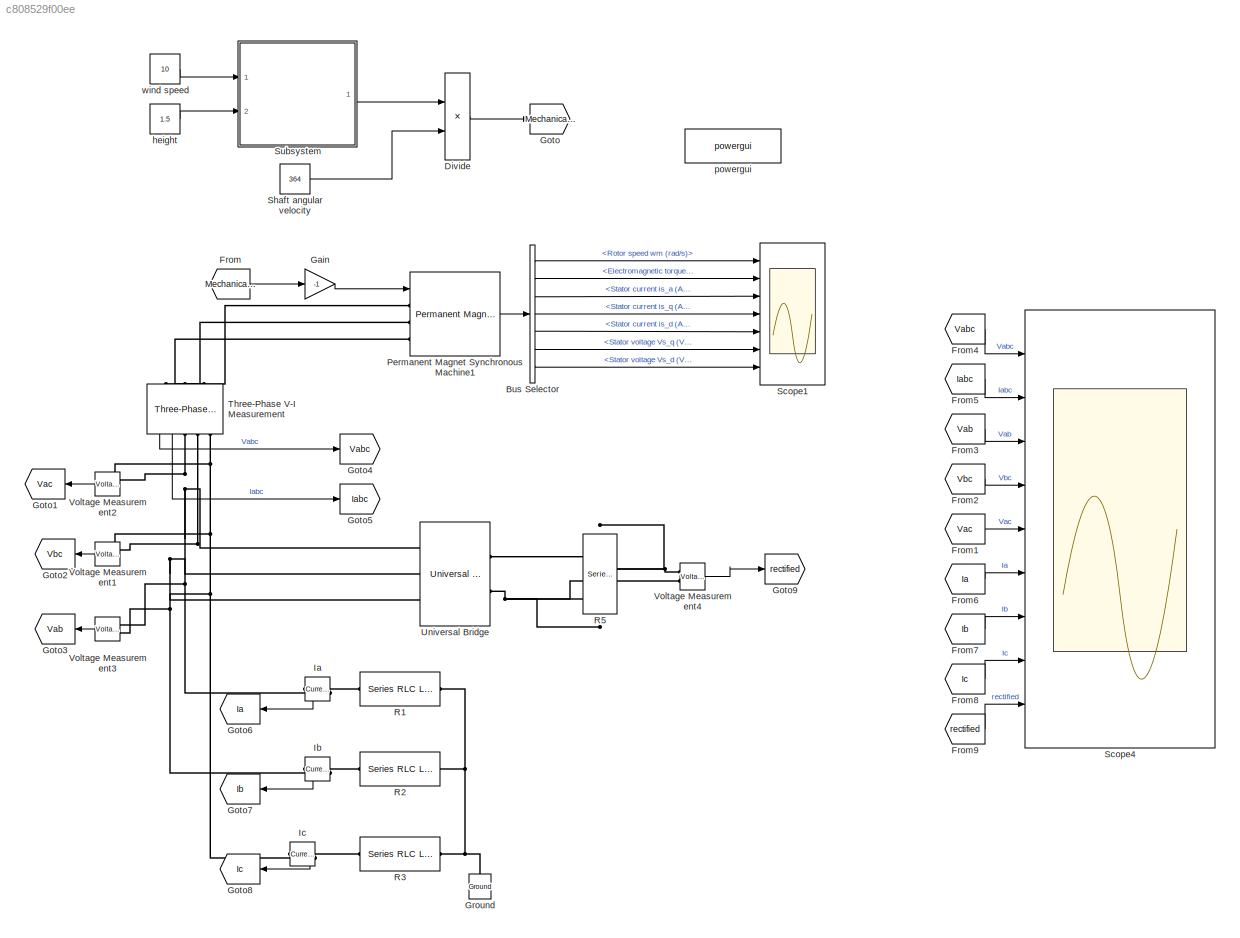
MODEL slx_c808529f00ee
KIND model
CONFIG AbsTol = auto
CONFIG EnableMultiTasking = off
CONFIG FixedStep = auto
CONFIG MaxStep = auto
CONFIG MinStep = auto
CONFIG RelTol = 1e-3
CONFIG SampleTimeConstraint = Unconstrained
CONFIG SolverName = VariableStepAuto
CONFIG StartTime = 0
CONFIG StopTime = 2
BLOCK [Constant]  wind speed 
  Value = 10
BLOCK [BusSelector] Bus Selector
  OutputSignals = Rotor speed wm (rad/s),Electromagnetic torque Te (N*m),Stator current is_a (A),Stator current is_q (A),Stator current is_d (A),Stator voltage Vs_q (V),Stator voltage Vs_d (V)
  Ports = [1, 7]
BLOCK [Product] Divide
  Inputs = */
  OutMax = [1000]
  OutMin = [1]
  Ports = [2, 1]
BLOCK [From] From
  GotoTag = Mechanical_Torque
BLOCK [From] From1
  GotoTag = Vac
  NameLocation = top
BLOCK [From] From2
  GotoTag = Vbc
  NameLocation = top
BLOCK [From] From3
  GotoTag = Vab
  NameLocation = top
BLOCK [From] From4
  GotoTag = Vabc
BLOCK [From] From5
  GotoTag = Iabc
BLOCK [From] From6
  GotoTag = Ia
  NameLocation = top
BLOCK [From] From7
  GotoTag = Ib
  NameLocation = top
BLOCK [From] From8
  GotoTag = Ic
  NameLocation = top
BLOCK [From] From9
  GotoTag = rectified
BLOCK [Gain] Gain
  Gain = -1
BLOCK [Goto] Goto
  GotoTag = Mechanical_Torque
BLOCK [Goto] Goto1
  GotoTag = Vac
  NameLocation = top
BLOCK [Goto] Goto2
  GotoTag = Vbc
  NameLocation = top
BLOCK [Goto] Goto3
  GotoTag = Vab
  NameLocation = top
BLOCK [Goto] Goto4
  GotoTag = Vabc
BLOCK [Goto] Goto5
  GotoTag = Iabc
BLOCK [Goto] Goto6
  GotoTag = Ia
  NameLocation = top
BLOCK [Goto] Goto7
  GotoTag = Ib
  NameLocation = top
BLOCK [Goto] Goto8
  GotoTag = Ic
  NameLocation = top
BLOCK [Goto] Goto9
  GotoTag = rectified
BLOCK [Reference] Ground  REF=spsGroundLib/Ground
  NameLocation = right
  Ports = [0, 0, 0, 0, 0, 1]
  SourceBlock = spsGroundLib/Ground
  SourceProductBaseCode = PS
  SourceType = Ground
BLOCK [Reference] Ia  REF=spsCurrentMeasurementLib/Current Measurement
  NameLocation = top
  Ports = [0, 1, 0, 0, 0, 1, 1]
  SourceBlock = spsCurrentMeasurementLib/Current Measurement
  SourceProductBaseCode = PS
  SourceType = Current Measurement
  UserDataPersistent = on
BLOCK [Reference] Ib  REF=spsCurrentMeasurementLib/Current Measurement
  NameLocation = top
  Ports = [0, 1, 0, 0, 0, 1, 1]
  SourceBlock = spsCurrentMeasurementLib/Current Measurement
  SourceProductBaseCode = PS
  SourceType = Current Measurement
  UserDataPersistent = on
BLOCK [Reference] Ic  REF=spsCurrentMeasurementLib/Current Measurement
  NameLocation = top
  Ports = [0, 1, 0, 0, 0, 1, 1]
  SourceBlock = spsCurrentMeasurementLib/Current Measurement
  SourceProductBaseCode = PS
  SourceType = Current Measurement
  UserDataPersistent = on
BLOCK [Reference] Permanent Magnet Synchronous Machine1  REF=spsPermanentMagnetSynchronousMachineLib/Permanent Magnet
Synchronous Machine
  Ports = [1, 1, 0, 0, 0, 3]
  SourceBlock = spsPermanentMagnetSynchronousMachineLib/Permanent Magnet\nSynchronous Machine
  SourceProductBaseCode = PS
  SourceType = Permanent Magnet Synchronous Machine
BLOCK [Reference] R1  REF=spsSeriesRLCLoadLib/Series RLC Load
  AttributesFormatString = \n
  Ports = [0, 0, 0, 0, 0, 1, 1]
  SourceBlock = spsSeriesRLCLoadLib/Series RLC Load
  SourceProductBaseCode = PS
  SourceType = Series RLC Load
BLOCK [Reference] R2  REF=spsSeriesRLCLoadLib/Series RLC Load
  AttributesFormatString = \n
  Ports = [0, 0, 0, 0, 0, 1, 1]
  SourceBlock = spsSeriesRLCLoadLib/Series RLC Load
  SourceProductBaseCode = PS
  SourceType = Series RLC Load
BLOCK [Reference] R3  REF=spsSeriesRLCLoadLib/Series RLC Load
  AttributesFormatString = \n
  Ports = [0, 0, 0, 0, 0, 1, 1]
  SourceBlock = spsSeriesRLCLoadLib/Series RLC Load
  SourceProductBaseCode = PS
  SourceType = Series RLC Load
BLOCK [Reference] R5  REF=spsSeriesRLCLoadLib/Series RLC Load
  AttributesFormatString = \n
  NameLocation = left
  Ports = [0, 0, 0, 0, 0, 1, 1]
  SourceBlock = spsSeriesRLCLoadLib/Series RLC Load
  SourceProductBaseCode = PS
  SourceType = Series RLC Load
BLOCK [Scope] Scope1
  Floating = off
  NumInputPorts = 7
  Ports = [7]
  ScopeSpecificationString = Simulink.scopes.TimeScopeBlockCfg('CurrentConfiguration', extmgr.ConfigurationSet(extmgr.Configuration('Core','General UI',true),extmgr.Configuration('Core','Source UI',true),extmgr.Configuration('Sources','WiredSimulink',true,'DataLoggingVariableName','ScopeData1'),extmgr.Configuration('Visuals','Time Domain',true,'SerializedDisplays',{struct('MinYLimReal','-9.62169','MaxYLimReal','86.59522','YLa...<+6441ch>
BLOCK [Scope] Scope4
  Floating = off
  NumInputPorts = 9
  Ports = [9]
  ScopeSpecificationString = Simulink.scopes.TimeScopeBlockCfg('CurrentConfiguration', extmgr.ConfigurationSet(extmgr.Configuration('Core','General UI',true),extmgr.Configuration('Core','Source UI',true),extmgr.Configuration('Sources','WiredSimulink',true,'DataLoggingVariableName','ScopeData5'),extmgr.Configuration('Visuals','Time Domain',true,'SerializedDisplays',{struct('MinYLimReal','-46.03628','MaxYLimReal','46.03628','YL...<+7458ch>
BLOCK [Constant] Shaft angular velocity 
  Value = 364
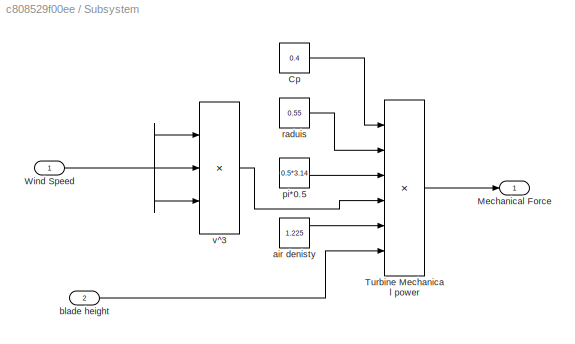
BLOCK [SubSystem] Subsystem
  Ports = [2, 1]
  RequestExecContextInheritance = off
BLOCK [Product] Subsystem/ Turbine Mechanical power 
  Inputs = 6
  Multiplication = Matrix(*)
  Ports = [6, 1]
BLOCK [Constant] Subsystem/Cp
  Value = 0.4
BLOCK [Outport] Subsystem/Mechanical Force
BLOCK [Inport] Subsystem/Wind Speed
BLOCK [Constant] Subsystem/air denisty
  Value = 1.225
BLOCK [Inport] Subsystem/blade height
  Port = 2
BLOCK [Constant] Subsystem/pi*0.5
  Value = 0.5*3.14
BLOCK [Constant] Subsystem/raduis
  Value = 0.55
BLOCK [Product] Subsystem/v^3 
  Inputs = ***
  Ports = [3, 1]
BLOCK [Reference] Three-Phase V-I Measurement  REF=spsThreePhaseVIMeasurementLib/Three-Phase
V-I Measurement
  NameLocation = left
  Ports = [0, 2, 0, 0, 0, 3, 3]
  SourceBlock = spsThreePhaseVIMeasurementLib/Three-Phase\nV-I Measurement
  SourceProductBaseCode = PS
  SourceType = Three-Phase VI Measurement
BLOCK [Reference] Universal Bridge  REF=spsUniversalBridgeLib/Universal Bridge
  Ports = [0, 0, 0, 0, 0, 3, 2]
  SourceBlock = spsUniversalBridgeLib/Universal Bridge
  SourceProductBaseCode = PS
  SourceType = Universal Bridge
BLOCK [Reference] Voltage Measurement1  REF=spsVoltageMeasurementLib/Voltage Measurement
  NameLocation = top
  Ports = [0, 1, 0, 0, 0, 2]
  SourceBlock = spsVoltageMeasurementLib/Voltage Measurement
  SourceProductBaseCode = PS
  SourceType = Voltage Measurement
  UserDataPersistent = on
BLOCK [Reference] Voltage Measurement2  REF=spsVoltageMeasurementLib/Voltage Measurement
  NameLocation = top
  Ports = [0, 1, 0, 0, 0, 2]
  SourceBlock = spsVoltageMeasurementLib/Voltage Measurement
  SourceProductBaseCode = PS
  SourceType = Voltage Measurement
  UserDataPersistent = on
BLOCK [Reference] Voltage Measurement3  REF=spsVoltageMeasurementLib/Voltage Measurement
  NameLocation = top
  Ports = [0, 1, 0, 0, 0, 2]
  SourceBlock = spsVoltageMeasurementLib/Voltage Measurement
  SourceProductBaseCode = PS
  SourceType = Voltage Measurement
  UserDataPersistent = on
BLOCK [Reference] Voltage Measurement4  REF=spsVoltageMeasurementLib/Voltage Measurement
  Ports = [0, 1, 0, 0, 0, 2]
  SourceBlock = spsVoltageMeasurementLib/Voltage Measurement
  SourceProductBaseCode = PS
  SourceType = Voltage Measurement
  UserDataPersistent = on
BLOCK [Constant] height 
  Value = 1.5
BLOCK [Reference] powergui  REF=spspowerguiLib/powergui
  Ports = []
  Priority = 1
  SourceBlock = spspowerguiLib/powergui
  SourceProductBaseCode = PS
  SourceType = PSB option menu block
LINE  wind speed :1 -> Subsystem:1
LINE Bus Selector:1 -> Scope1:1
LINE Bus Selector:2 -> Scope1:2
LINE Bus Selector:3 -> Scope1:3
LINE Bus Selector:4 -> Scope1:4
LINE Bus Selector:5 -> Scope1:5
LINE Bus Selector:6 -> Scope1:6
LINE Bus Selector:7 -> Scope1:7
LINE Divide:1 -> Goto:1
LINE From1:1 -> Scope4:5
LINE From2:1 -> Scope4:4
LINE From3:1 -> Scope4:3
LINE From4:1 -> Scope4:1
LINE From5:1 -> Scope4:2
LINE From6:1 -> Scope4:6
LINE From7:1 -> Scope4:7
LINE From8:1 -> Scope4:8
LINE From9:1 -> Scope4:9
LINE From:1 -> Gain:1
LINE Gain:1 -> Permanent Magnet Synchronous Machine1:1
LINE Ia:1 -> Goto6:1
LINE Ib:1 -> Goto7:1
LINE Ic:1 -> Goto8:1
LINE Permanent Magnet Synchronous Machine1:1 -> Bus Selector:1
LINE Shaft angular velocity :1 -> Divide:2
LINE Subsystem/ Turbine Mechanical power :1 -> Subsystem/Mechanical Force:1
LINE Subsystem/Cp:1 -> Subsystem/ Turbine Mechanical power :1
NET Subsystem/Wind Speed:1 -> Subsystem/v^3 :1, Subsystem/v^3 :2, Subsystem/v^3 :3
LINE Subsystem/air denisty:1 -> Subsystem/ Turbine Mechanical power :5
LINE Subsystem/blade height:1 -> Subsystem/ Turbine Mechanical power :6
LINE Subsystem/pi*0.5:1 -> Subsystem/ Turbine Mechanical power :3
LINE Subsystem/raduis:1 -> Subsystem/ Turbine Mechanical power :2
LINE Subsystem/v^3 :1 -> Subsystem/ Turbine Mechanical power :4
LINE Subsystem:1 -> Divide:1
LINE Three-Phase V-I Measurement:1 -> Goto4:1
LINE Three-Phase V-I Measurement:2 -> Goto5:1
LINE Voltage Measurement1:1 -> Goto2:1
LINE Voltage Measurement2:1 -> Goto1:1
LINE Voltage Measurement3:1 -> Goto3:1
LINE Voltage Measurement4:1 -> Goto9:1
LINE height :1 -> Subsystem:2
PNET net1: Ground:LConn1 -- R1:RConn1 -- R2:RConn1 -- R3:RConn1
PLINE Ia:LConn1 -- R1:LConn1
PNET net2: Ia:RConn1 -- Three-Phase V-I Measurement:RConn1 -- Universal Bridge:LConn1 -- Voltage Measurement2:LConn1 -- Voltage Measurement3:LConn1
PLINE Ib:LConn1 -- R2:LConn1
PNET net3: Ib:RConn1 -- Three-Phase V-I Measurement:RConn2 -- Universal Bridge:LConn2 -- Voltage Measurement1:LConn1 -- Voltage Measurement3:LConn2
PLINE Ic:LConn1 -- R3:LConn1
PNET net4: Ic:RConn1 -- Three-Phase V-I Measurement:RConn3 -- Universal Bridge:LConn3 -- Voltage Measurement1:LConn2 -- Voltage Measurement2:LConn2
PLINE Permanent Magnet Synchronous Machine1:LConn1 -- Three-Phase V-I Measurement:LConn1
PLINE Permanent Magnet Synchronous Machine1:LConn2 -- Three-Phase V-I Measurement:LConn2
PLINE Permanent Magnet Synchronous Machine1:LConn3 -- Three-Phase V-I Measurement:LConn3
PNET net5: R5:LConn1 -- Universal Bridge:RConn1 -- Voltage Measurement4:LConn1
PNET net6: R5:RConn1 -- Universal Bridge:RConn2 -- Voltage Measurement4:LConn2
note: NET lines group one-source signal fan-out (src -> all destinations, sorted); 1:1 wires keep LINE; PNET lines group multi-terminal physical nets as a canonical sorted terminal list (undirected conserving connections); 2-terminal nets keep the pairwise PLINE form
